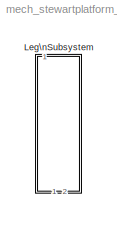
MODEL mech_stewartplatform_leg
KIND library
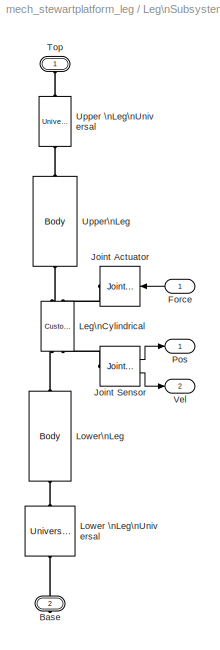
BLOCK [SubSystem] Leg\nSubsystem
  MaskEnableString = on
  MaskIconFrame = on
  MaskIconOpaque = on
  MaskIconRotate = none
  MaskIconUnits = autoscale
  MaskPromptString = Leg Number
  MaskStyleString = edit
  MaskToolTipString = on
  MaskTunableValueString = on
  MaskValueString = 1
  MaskVariables = ln=@1;
  MaskVisibilityString = on
  MinAlgLoopOccurrences = off
  Ports = [1, 2, 0, 0, 0, 1, 1]
  RTWSystemCode = Auto
  TreatAsAtomicUnit = off
BLOCK [PMIOPort] Leg\nSubsystem/Base
  Port = 2
  Side = Right
BLOCK [Inport] Leg\nSubsystem/Force
  Description = Applies a force (N) to the prismatic axis
  IconDisplay = Port number
  LatchInput = off
  Port = 1
BLOCK [Reference] Leg\nSubsystem/Joint Actuator  REF=mblibv1/Sensors & \nActuators/Joint Actuator
  AccelerationUnits = m/s^2
  ActiveIO = off
  ActuationStyle = Force
  AngleUnits = deg
  ArcAccelerationUnits = deg/s^2
  ArcVelocityUnits = deg/s
  ClassName = JointActuator
  CoordPositionUnits = m
  DialogClass = MechanicalActuatorBlock
  ForceUnits = N
  Opaque = on
  PhysicalDomain = Mechanical
  PortType = blob
  Ports = [1, 0, 0, 0, 0, 0, 1]
  Primitive = P1
  ReferenceFrame = Absolute (INERTIAL)
  SourceBlock = mblibv1/Sensors & \nActuators/Joint Actuator
  SourceType = msb
  TorqueUnits = N-m
  VelocityUnits = m/s
  Width = 1
BLOCK [Reference] Leg\nSubsystem/Joint Sensor  REF=mblibv1/Sensors & \nActuators/Joint Sensor
  Acceleration = off
  AccelerationUnits = m/s^2
  ActiveIO = off
  Angle = on
  AngleUnits = deg
  ArcAcceleration = off
  ArcAccelerationUnits = deg/s^2
  ArcVelocity = off
  ArcVelocityUnits = deg/s
  ClassName = JointSensor
  CoordPosition = on
  CoordPositionUnits = m
  DialogClass = MechanicalSensorBlock
  Force = off
  ForceUnits = N
  Muxed = off
  Opaque = on
  OutputVector = [ 1 1 ]
  PhysicalDomain = Mechanical
  PortType = blob
  Ports = [0, 2, 0, 0, 0, 1]
  Pose = off
  Primitive = P1
  Quaternion = on
  QuaternionDDT = off
  QuaternionDT = off
  QuaternionUnits = off
  ReactionForce = off
  ReactionForceUnits = N
  ReactionMoment = off
  ReactionMomentUnits = N-m
  ReactionReferenceFrame = Absolute (World)
  ReactionSensedSide = Base
  ReferenceFrame = Absolute (INERTIAL)
  SourceBlock = mblibv1/Sensors & \nActuators/Joint Sensor
  SourceType = msb
  Torque = off
  TorqueUnits = N-m
  Velocity = on
  VelocityUnits = m/s
  Width = 1
BLOCK [Reference] Leg\nSubsystem/Leg\nCylindrical  REF=mblibv1/Joints/Custom Joint
  ClassName = Joint
  CutJoint = off
  DialogClass = JointBlock
  LConnTagsString = __newl0|SA1
  LeftPortType = blob
  MarkAsCut = off
  NumSAPorts = 2
  PhysicalDomain = mechanical
  Ports = [0, 0, 0, 0, 0, 2, 2]
  PrimitiveProps = R1$WORLD$cyl1(ln,:)$revolute#P1$WORLD$cyl1(ln,:)$prismatic
  Primitives = revolute_prismatic
  RConnTagsString = __newr0|SA1
  RightPortType = blob
  SourceBlock = mblibv1/Joints/Custom Joint
  SourceType = msb
  SubClassName = custom_joint
BLOCK [Reference] Leg\nSubsystem/Lower \nLeg\nUniversal  REF=mblibv1/Joints/Universal
  ClassName = Joint
  CutJoint = off
  DialogClass = JointBlock
  LConnTagsString = __newl0
  LeftPortType = blob
  MarkAsCut = off
  NumSAPorts = 0
  PhysicalDomain = mechanical
  Ports = [0, 0, 0, 0, 0, 1, 1]
  PrimitiveProps = R1$WORLD$rev1(ln,:)$revolute#R2$WORLD$rev2(ln,:)$revolute
  Primitives = revolute_revolute
  RConnTagsString = __newr0
  RightPortType = blob
  SourceBlock = mblibv1/Joints/Universal
  SourceType = msb
  SubClassName = Unknown
BLOCK [Reference] Leg\nSubsystem/Lower\nLeg  REF=mblibv1/Bodies/Body
  CG = Left$CG$lower_leg(ln).origin$WORLD$WORLD$m$lower_leg(ln).rotation$3x3 Transform$deg$WORLD$false
  ClassName = Body
  Density = 1
  DensityUnits = kg/m^3
  DensityUse = false
  DialogClass = MechanicalBodyBlock
  Inertia = lower_leg_inertia
  InertiaUnits = kg*m^2
  LConnTagsString = CS1
  LeftPortType = workingframe
  Mass = lower_leg_mass
  MassUnits = kg
  PhysicalDomain = mechanical
  Ports = [0, 0, 0, 0, 0, 1, 1]
  RConnTagsString = CS3
  RightPortType = workingframe
  Shape = Cylinder
  ShapeDims = [1 1]
  ShapeUnits = m
  ShapeUse = false
  SourceBlock = mblibv1/Bodies/Body
  SourceType = msb
  SubClassName = Unknown
  WorkingFrames = Left$CS1$pos_base(ln,:)$WORLD$WORLD$m$lower_leg(ln).rotation$3x3 Transform$deg$WORLD$true#Right$CS3$(lower_leg(ln).end_point + upper_leg(ln).end_point)/2$WORLD$WORLD$m$lower_leg(ln).rotation$3x3 Transform$deg$WORLD$true#Right$CS2$lower_leg(ln).end_point$WORLD$WORLD$m$lower_leg(ln).rotation$3x3 Transform$deg$WORLD$false
BLOCK [Outport] Leg\nSubsystem/Pos
  Description = Senses position and velocity of the prismatic axis
  IconDisplay = Port number
BLOCK [PMIOPort] Leg\nSubsystem/Top
  Port = 1
  Side = Left
BLOCK [Reference] Leg\nSubsystem/Upper \nLeg\nUniversal  REF=mblibv1/Joints/Universal
  ClassName = Joint
  CutJoint = off
  DialogClass = JointBlock
  LConnTagsString = __newl0
  LeftPortType = blob
  MarkAsCut = off
  NumSAPorts = 0
  PhysicalDomain = mechanical
  Ports = [0, 0, 0, 0, 0, 1, 1]
  PrimitiveProps = R1$WORLD$rev3(ln,:)$revolute#R2$WORLD$rev4(ln,:)$revolute
  Primitives = revolute_revolute
  RConnTagsString = __newr0
  RightPortType = blob
  SourceBlock = mblibv1/Joints/Universal
  SourceType = msb
  SubClassName = Unknown
BLOCK [Reference] Leg\nSubsystem/Upper\nLeg  REF=mblibv1/Bodies/Body
  CG = Left$CG$upper_leg(ln).origin$WORLD$WORLD$m$upper_leg(ln).rotation$3x3 Transform$deg$WORLD$false
  ClassName = Body
  Density = 1
  DensityUnits = kg/m^3
  DensityUse = false
  DialogClass = MechanicalBodyBlock
  Inertia = upper_leg_inertia
  InertiaUnits = kg*m^2
  LConnTagsString = CS3
  LeftPortType = workingframe
  Mass = upper_leg_mass
  MassUnits = kg
  PhysicalDomain = mechanical
  Ports = [0, 0, 0, 0, 0, 1, 1]
  RConnTagsString = CS2
  RightPortType = workingframe
  Shape = Cylinder
  ShapeDims = [1 1]
  ShapeUnits = m
  ShapeUse = false
  SourceBlock = mblibv1/Bodies/Body
  SourceType = msb
  SubClassName = Unknown
  WorkingFrames = Left$CS3$(lower_leg(ln).end_point + upper_leg(ln).end_point)/2$WORLD$WORLD$m$upper_leg(ln).rotation$3x3 Transform$deg$WORLD$true#Left$CS1$upper_leg(ln).end_point$WORLD$WORLD$m$upper_leg(ln).rotation$3x3 Transform$deg$WORLD$false#Right$CS2$pos_top(ln,:)$WORLD$WORLD$m$upper_leg(ln).rotation$3x3 Transform$deg$WORLD$true
BLOCK [Outport] Leg\nSubsystem/Vel
  Description = Senses position and velocity of the prismatic axis
  IconDisplay = Port number
  Port = 2
LINE Leg\nSubsystem/Force:1 -> Leg\nSubsystem/Joint Actuator:1
LINE Leg\nSubsystem/Joint Sensor:1 -> Leg\nSubsystem/Pos:1
LINE Leg\nSubsystem/Joint Sensor:2 -> Leg\nSubsystem/Vel:1
PLINE Leg\nSubsystem/Base:RConn1 -- Leg\nSubsystem/Lower \nLeg\nUniversal:LConn1
PLINE Leg\nSubsystem/Joint Actuator:RConn1 -- Leg\nSubsystem/Leg\nCylindrical:RConn2
PLINE Leg\nSubsystem/Joint Sensor:LConn1 -- Leg\nSubsystem/Leg\nCylindrical:LConn2
PLINE Leg\nSubsystem/Leg\nCylindrical:LConn1 -- Leg\nSubsystem/Lower\nLeg:RConn1
PLINE Leg\nSubsystem/Leg\nCylindrical:RConn1 -- Leg\nSubsystem/Upper\nLeg:LConn1
PLINE Leg\nSubsystem/Lower \nLeg\nUniversal:RConn1 -- Leg\nSubsystem/Lower\nLeg:LConn1
PLINE Leg\nSubsystem/Top:RConn1 -- Leg\nSubsystem/Upper \nLeg\nUniversal:RConn1
PLINE Leg\nSubsystem/Upper \nLeg\nUniversal:LConn1 -- Leg\nSubsystem/Upper\nLeg:RConn1
